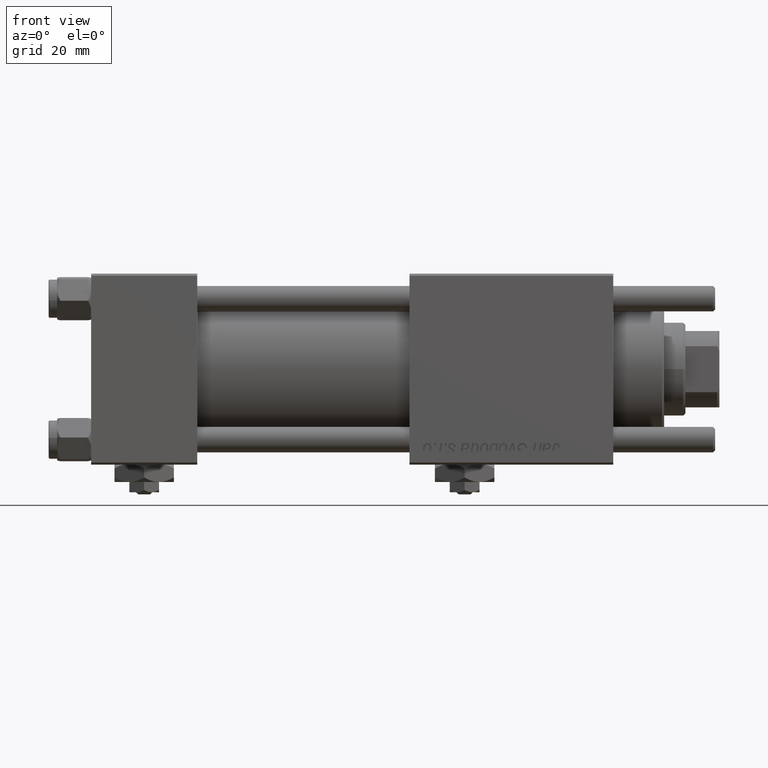
[diagram: clean part render]
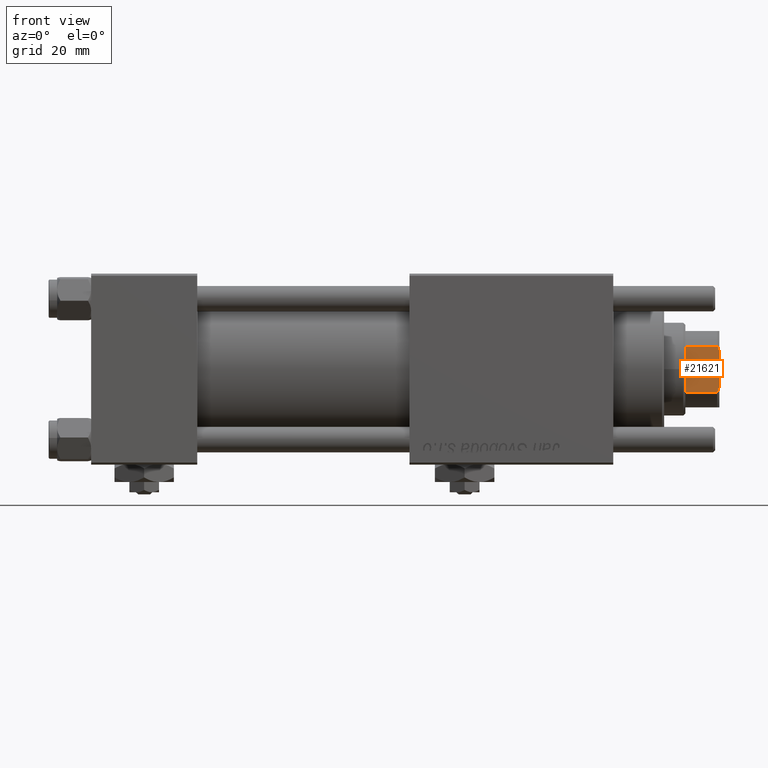
[diagram: same view with one face highlighted and labeled with its STEP entity id]
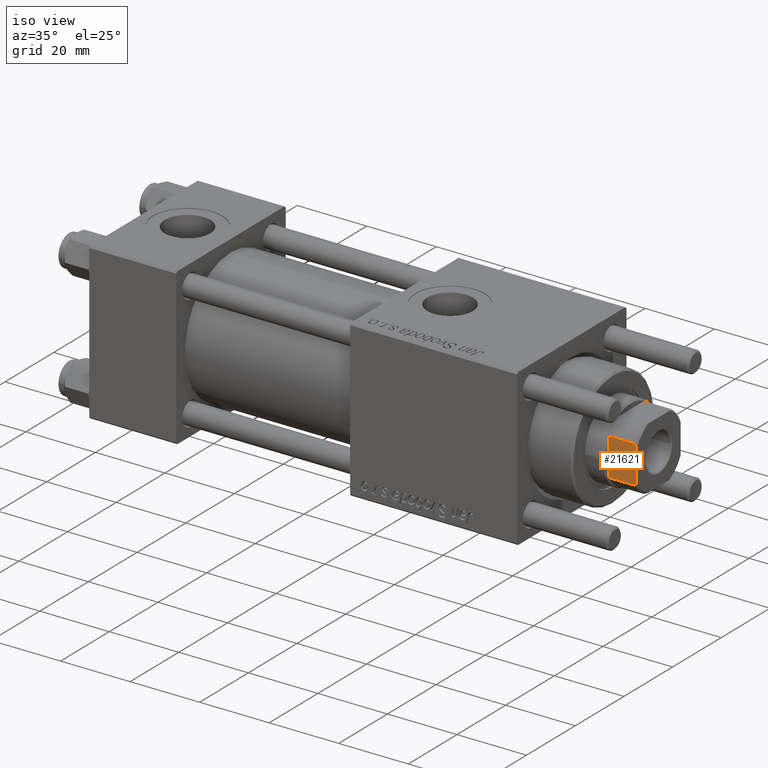
[diagram: same view with one face highlighted and labeled with its STEP entity id]
A machine part, front view. The second image highlights one B-rep face of the part: STEP entity #21621.
A second angle (iso view) of the same face is appended — the face is thin or edge-on in the first view.
In plain terms, the highlighted planar face has unit normal (0, 1, 0).
Its self-contained STEP definition (entity closure, byte-faithful):
#371 = LINE ( 'NONE', #9315, #25086 ) ;
#1414 = EDGE_LOOP ( 'NONE', ( #17779, #49987, #25173, #44496, #35347, #49753 ) ) ;
#1703 = VERTEX_POINT ( 'NONE', #54804 ) ;
#2733 = EDGE_CURVE ( 'NONE', #29044, #16454, #21616, .T. ) ;
#4557 = DIRECTION ( 'NONE',  ( -0.000000000000000000, -0.000000000000000000, 1.000000000000000000 ) ) ;
#4753 = CARTESIAN_POINT ( 'NONE',  ( 8.999999999999996447, 8.999999999999998224, 123.0000000000000000 ) ) ;
#6761 = EDGE_CURVE ( 'NONE', #53407, #12300, #49193, .T. ) ;
#7249 = CARTESIAN_POINT ( 'NONE',  ( 8.999999999999996447, 5.063687070142427693, 122.6775166608138932 ) ) ;
#8420 = DIRECTION ( 'NONE',  ( -1.927470528863119049E-16, 1.000000000000000000, -0.000000000000000000 ) ) ;
#9315 = CARTESIAN_POINT ( 'NONE',  ( 8.999999999999996447, -5.408326913195990571, -0.001000000000001000089 ) ) ;
#10391 = LINE ( 'NONE', #28536, #27461 ) ;
#11149 = CARTESIAN_POINT ( 'NONE',  ( 8.999999999999998224, 4.358898943540600257, 123.0000000000000000 ) ) ;
#12300 = VERTEX_POINT ( 'NONE', #46969 ) ;
#12546 = CARTESIAN_POINT ( 'NONE',  ( 9.000000000000000000, -4.714305797500252027, 122.8450817439748448 ) ) ;
#12942 = VECTOR ( 'NONE', #8420, 1000.000000000000000 ) ;
#13428 = CARTESIAN_POINT ( 'NONE',  ( 8.999999999999998224, -4.358898943540672200, 123.0000000000000000 ) ) ;
#16454 = VERTEX_POINT ( 'NONE', #46740 ) ;
#17779 = ORIENTED_EDGE ( 'NONE', *, *, #18053, .T. ) ;
#18053 = EDGE_CURVE ( 'NONE', #12300, #29044, #10391, .T. ) ;
#20087 = CARTESIAN_POINT ( 'NONE',  ( 8.999999999999996447, 5.408326913195991459, 122.4999999999999716 ) ) ;
#21616 = B_SPLINE_CURVE_WITH_KNOTS ( 'NONE', 3,
 ( #20087, #7249, #29578, #11149 ),
 .UNSPECIFIED., .F., .F.,
 ( 4, 4 ),
 ( 0.000000000000000000, 0.001162453897363273890 ),
 .UNSPECIFIED. ) ;
#21621 = ADVANCED_FACE ( 'NONE', ( #45820 ), #45523, .F. ) ;
#22786 = AXIS2_PLACEMENT_3D ( 'NONE', #4753, #40758, #46413 ) ;
#23406 = DIRECTION ( 'NONE',  ( -1.927470528863119049E-16, 1.000000000000000000, -0.000000000000000000 ) ) ;
#24790 = EDGE_CURVE ( 'NONE', #1703, #37748, #30961, .T. ) ;
#25086 = VECTOR ( 'NONE', #4557, 1000.000000000000000 ) ;
#25173 = ORIENTED_EDGE ( 'NONE', *, *, #28937, .F. ) ;
#27103 = CARTESIAN_POINT ( 'NONE',  ( 9.000000000000000000, -5.063687070142444568, 122.6775166608139216 ) ) ;
#27461 = VECTOR ( 'NONE', #46681, 1000.000000000000000 ) ;
#28536 = CARTESIAN_POINT ( 'NONE',  ( 8.999999999999996447, 5.408326913195991459, -0.001000000000001000089 ) ) ;
#28937 = EDGE_CURVE ( 'NONE', #1703, #16454, #58792, .T. ) ;
#29044 = VERTEX_POINT ( 'NONE', #47182 ) ;
#29578 = CARTESIAN_POINT ( 'NONE',  ( 8.999999999999998224, 4.714305797500204065, 122.8450817439748306 ) ) ;
#30961 = B_SPLINE_CURVE_WITH_KNOTS ( 'NONE', 3,
 ( #13428, #12546, #27103, #36040 ),
 .UNSPECIFIED., .F., .F.,
 ( 4, 4 ),
 ( 0.000000000000000000, 0.001162453897363195177 ),
 .UNSPECIFIED. ) ;
#33602 = CARTESIAN_POINT ( 'NONE',  ( 8.999999999999996447, -5.408326913195990571, 115.0000000000000284 ) ) ;
#35347 = ORIENTED_EDGE ( 'NONE', *, *, #36612, .F. ) ;
#36040 = CARTESIAN_POINT ( 'NONE',  ( 8.999999999999996447, -5.408326913195990571, 122.5000000000000000 ) ) ;
#36612 = EDGE_CURVE ( 'NONE', #53407, #37748, #371, .T. ) ;
#37748 = VERTEX_POINT ( 'NONE', #54778 ) ;
#39978 = CARTESIAN_POINT ( 'NONE',  ( 8.999999999999996447, 8.999999999999998224, 115.0000000000000000 ) ) ;
#40758 = DIRECTION ( 'NONE',  ( -1.000000000000000000, -1.927470528863119049E-16, 0.000000000000000000 ) ) ;
#44496 = ORIENTED_EDGE ( 'NONE', *, *, #24790, .T. ) ;
#45125 = CARTESIAN_POINT ( 'NONE',  ( 8.999999999999996447, 8.999999999999998224, 123.0000000000000000 ) ) ;
#45523 = PLANE ( 'NONE',  #22786 ) ;
#45820 = FACE_OUTER_BOUND ( 'NONE', #1414, .T. ) ;
#46413 = DIRECTION ( 'NONE',  ( 1.927470528863119049E-16, -1.000000000000000000, 0.000000000000000000 ) ) ;
#46681 = DIRECTION ( 'NONE',  ( -0.000000000000000000, -0.000000000000000000, 1.000000000000000000 ) ) ;
#46740 = CARTESIAN_POINT ( 'NONE',  ( 8.999999999999998224, 4.358898943540600257, 123.0000000000000000 ) ) ;
#46969 = CARTESIAN_POINT ( 'NONE',  ( 8.999999999999996447, 5.408326913195991459, 115.0000000000000284 ) ) ;
#47182 = CARTESIAN_POINT ( 'NONE',  ( 8.999999999999996447, 5.408326913195991459, 122.4999999999999716 ) ) ;
#49193 = LINE ( 'NONE', #39978, #12942 ) ;
#49753 = ORIENTED_EDGE ( 'NONE', *, *, #6761, .T. ) ;
#49987 = ORIENTED_EDGE ( 'NONE', *, *, #2733, .T. ) ;
#53407 = VERTEX_POINT ( 'NONE', #33602 ) ;
#54417 = VECTOR ( 'NONE', #23406, 1000.000000000000000 ) ;
#54778 = CARTESIAN_POINT ( 'NONE',  ( 8.999999999999996447, -5.408326913195990571, 122.5000000000000000 ) ) ;
#54804 = CARTESIAN_POINT ( 'NONE',  ( 8.999999999999998224, -4.358898943540672200, 123.0000000000000000 ) ) ;
#58792 = LINE ( 'NONE', #45125, #54417 ) ;